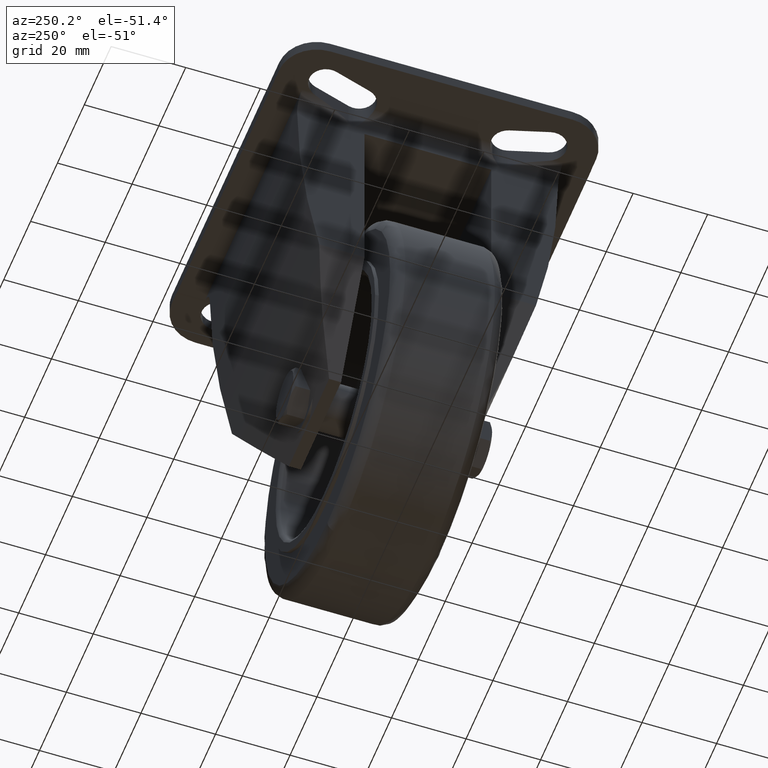
[diagram: clean part render]
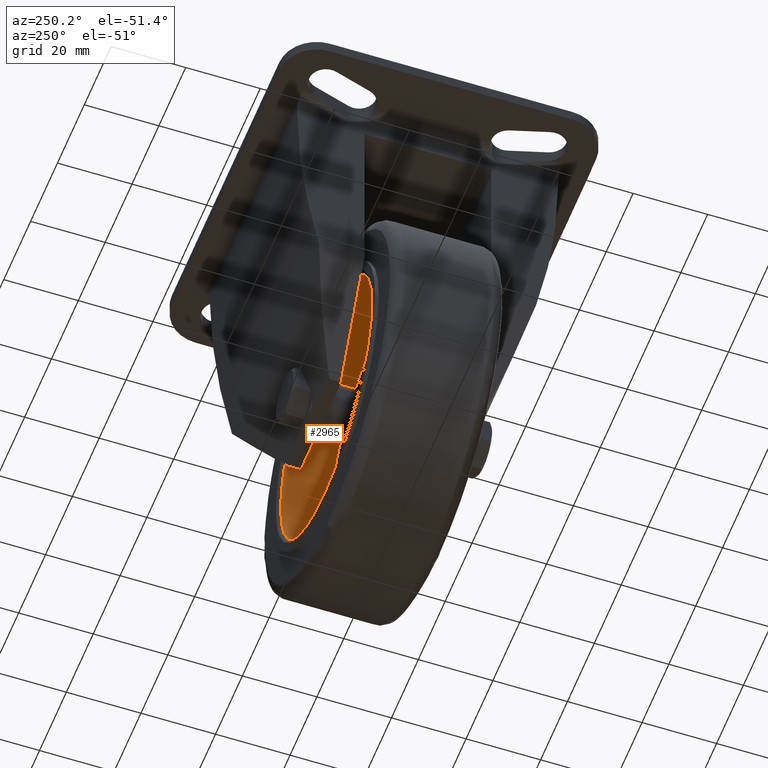
[diagram: same view with one face highlighted and labeled with its STEP entity id]
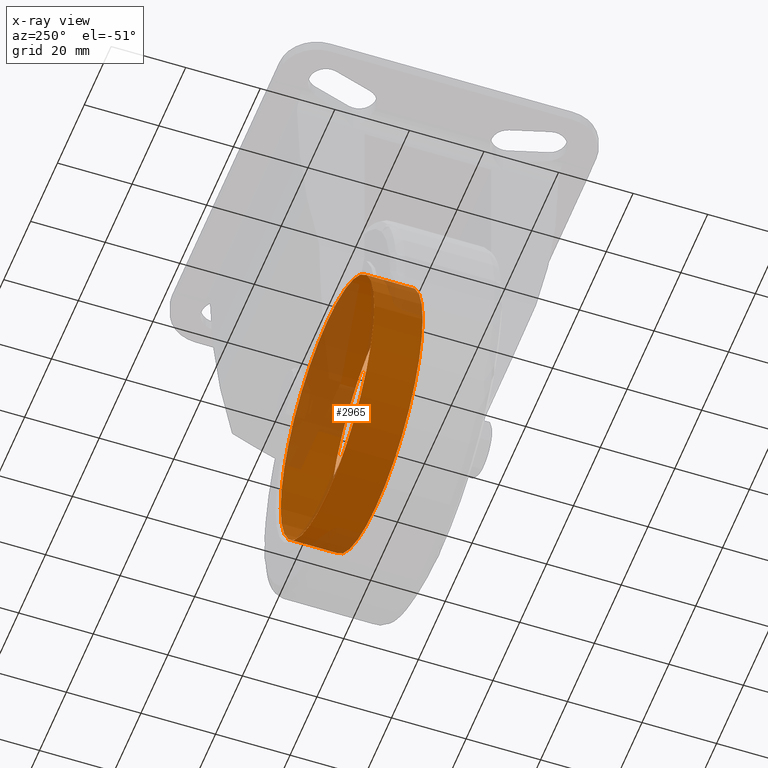
[diagram: x-ray of the same camera — body ghosted, the highlighted face saturated]
A machine part, auxiliary view. The second image highlights one B-rep face of the part: STEP entity #2965.
The next image is the same camera in x-ray: the body ghosted, the highlighted face saturated — about 31% of this face is hidden behind the body in this view.
In plain terms, the highlighted cylindrical surface (bore or boss wall) has radius 34.8317 mm, axis along (-0, 1, -0).
Its self-contained STEP definition (entity closure, byte-faithful):
#2900=CARTESIAN_POINT('',(-84.331678570328222,14.999999999937819,-80.075077357231748));
#2901=VERTEX_POINT('',#2900);
#2909=CARTESIAN_POINT('',(-14.668300648926362,14.999999999937854,-80.075077357231748));
#2910=VERTEX_POINT('',#2909);
#2911=CARTESIAN_POINT('',(-49.499989609626937,14.999999999937836,-80.075077357231748));
#2912=DIRECTION('',(-5.163578E-016,1.0,-1.224647E-016));
#2913=DIRECTION('',(-1.0,-5.163578E-016,6.323559E-032));
#2914=AXIS2_PLACEMENT_3D('',#2911,#2912,#2913);
#2915=CIRCLE('',#2914,34.831688960700575);
#2916=EDGE_CURVE('',#2910,#2901,#2915,.T.);
#2918=CARTESIAN_POINT('',(-49.499989609626937,14.999999999937836,-80.075077357231748));
#2919=DIRECTION('',(-5.163578E-016,1.0,-1.224647E-016));
#2920=DIRECTION('',(-1.0,-5.163578E-016,6.323559E-032));
#2921=AXIS2_PLACEMENT_3D('',#2918,#2919,#2920);
#2922=CIRCLE('',#2921,34.831688960700575);
#2923=EDGE_CURVE('',#2901,#2910,#2922,.T.);
#2931=CARTESIAN_POINT('',(-49.499989609626937,0.999999999998081,-80.075077357231748));
#2932=DIRECTION('',(-5.163578E-016,1.0,-1.224647E-016));
#2933=DIRECTION('',(-1.0,-5.163578E-016,6.323559E-032));
#2934=AXIS2_PLACEMENT_3D('',#2931,#2932,#2933);
#2935=CYLINDRICAL_SURFACE('',#2934,34.831688960700575);
#2936=CARTESIAN_POINT('',(-84.331678570328222,1.999999999998059,-80.075077357231748));
#2937=VERTEX_POINT('',#2936);
#2938=CARTESIAN_POINT('',(-84.331678570328222,1.999999999998058,-80.075077357231748));
#2939=DIRECTION('',(0.0,1.0,0.0));
#2940=VECTOR('',#2939,12.999999999939760);
#2941=LINE('',#2938,#2940);
#2942=EDGE_CURVE('',#2937,#2901,#2941,.T.);
#2943=ORIENTED_EDGE('',*,*,#2942,.F.);
#2944=CARTESIAN_POINT('',(-14.668300648926364,1.999999999998095,-80.075077357231748));
#2945=VERTEX_POINT('',#2944);
#2946=CARTESIAN_POINT('',(-49.499989609626937,1.999999999998077,-80.075077357231748));
#2947=DIRECTION('',(-5.163578E-016,1.0,-1.224647E-016));
#2948=DIRECTION('',(-1.0,-5.163578E-016,6.323559E-032));
#2949=AXIS2_PLACEMENT_3D('',#2946,#2947,#2948);
#2950=CIRCLE('',#2949,34.831688960700575);
#2951=EDGE_CURVE('',#2945,#2937,#2950,.T.);
#2952=ORIENTED_EDGE('',*,*,#2951,.F.);
#2953=CARTESIAN_POINT('',(-49.499989609626937,1.999999999998077,-80.075077357231748));
#2954=DIRECTION('',(-5.163578E-016,1.0,-1.224647E-016));
#2955=DIRECTION('',(-1.0,-5.163578E-016,6.323559E-032));
#2956=AXIS2_PLACEMENT_3D('',#2953,#2954,#2955);
#2957=CIRCLE('',#2956,34.831688960700575);
#2958=EDGE_CURVE('',#2937,#2945,#2957,.T.);
#2959=ORIENTED_EDGE('',*,*,#2958,.F.);
#2960=ORIENTED_EDGE('',*,*,#2942,.T.);
#2961=ORIENTED_EDGE('',*,*,#2923,.T.);
#2962=ORIENTED_EDGE('',*,*,#2916,.T.);
#2963=EDGE_LOOP('',(#2943,#2952,#2959,#2960,#2961,#2962));
#2964=FACE_OUTER_BOUND('',#2963,.T.);
#2965=ADVANCED_FACE('',(#2964),#2935,.F.);